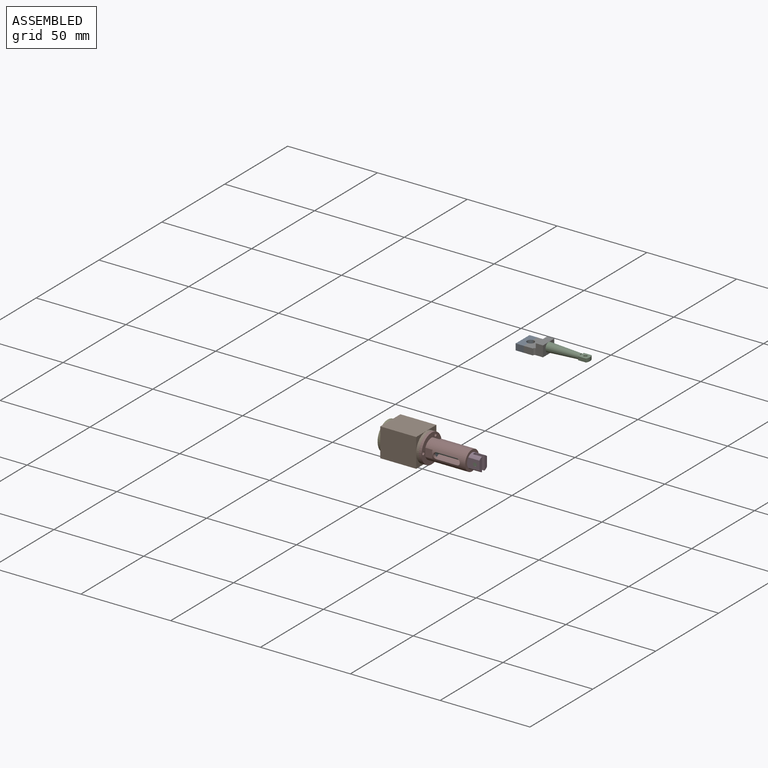
[diagram: assembled view]
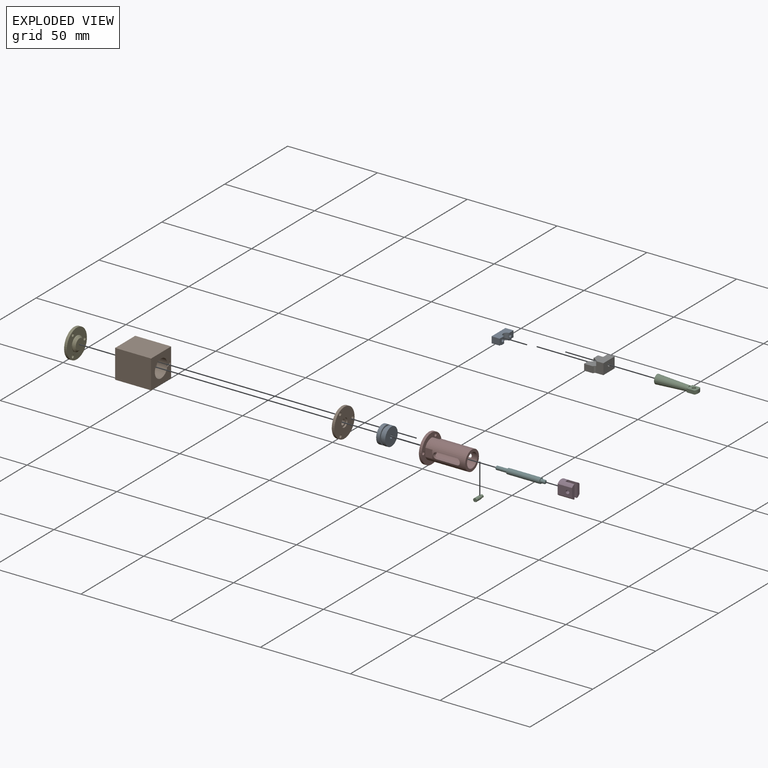
[diagram: exploded view]
GUIDED TOUR — MATED ASSEMBLY (Onshape document 35b961d6c0c4da3e0b8d5fec, AutoMate assembly 35b961d6c0c4da3e0b8d5fec_8a7f03e0285d7476e29d82cc_117d4b08d3fd386e39b63ba8_default)

This assembly has 11 components, labeled P0..P10 below (a component is one placed occurrence of a part; the same part can appear more than once), held together by 13 mates. A mate is a constraint between two components; its type names the relative motion it leaves free:
  CYLINDRICAL — leaves both rotation about and translation along the listed axis free,
  PARALLEL — keeps the two listed directions parallel,
  REVOLUTE — leaves rotation about the listed axis free (a hinge),
  SLIDER — leaves translation along the listed axis free.
Axis/direction vectors are unit vectors and 'through' points are millimeter coordinates, both in the assembly's world frame.

MATES
  1. REVOLUTE "Revolute 4": P1 <-> P7, axis (1.000, 0.000, 0.000) through (-35.29, -15.67, -13.66) mm
  2. CYLINDRICAL "Cylindrical 1": P8 <-> P6, axis (1.000, 0.000, 0.000) through (-20.15, 46.58, 19.34) mm
  3. REVOLUTE "Revolute 2": P3 <-> P5, axis (-1.000, 0.000, 0.000) through (-13.08, -15.67, -13.66) mm
  4. REVOLUTE "Revolute 7": P6 <-> P2, axis (1.000, 0.000, 0.000) through (-10.15, 43.58, 21.09) mm
  5. REVOLUTE "Revolute 6": P4 <-> P9, axis (1.000, 0.000, 0.000) through (-56.79, -15.67, -13.66) mm
  6. PARALLEL "Parallel 2": P3 <-> P7, direction (0.000, -1.000, 0.000) through (-9.20, -18.67, -13.66) mm
  7. REVOLUTE "Revolute 3": P10 <-> P3, axis (0.000, 1.000, 0.000) through (-7.58, -12.67, -13.66) mm
  8. PARALLEL "Parallel 3": P2 <-> P6, direction (0.000, 0.000, -1.000) through (10.23, 43.58, 20.09) mm
  9. REVOLUTE "Revolute 1": P5 <-> P0, axis (-1.000, 0.000, 0.000) through (-31.58, -15.67, -13.66) mm
  10. REVOLUTE "Revolute 5": P9 <-> P1, axis (1.000, 0.000, 0.000) through (-36.79, -15.67, -13.66) mm
  11. PARALLEL "Parallel 1": P7 <-> P9, direction (0.000, -1.000, 0.000) through (-31.79, -20.67, -13.66) mm
  12. REVOLUTE "Revolute 8": P6 <-> P8, axis (0.000, 0.000, -1.000) through (-20.15, 43.58, 17.29) mm
  13. SLIDER "Slider 1": P5 <-> P1, axis (-1.000, 0.000, 0.000) through (-22.33, -15.67, -13.66) mm

ASSEMBLY ORDER
  1. P7 — the base component [order heuristic]
  2. P5 — core [order heuristic]
  3. P0 — core [order heuristic]
  4. P1 [order verified]
  5. P10 [order verified]
  6. P3 [order verified]
  7. P8 [order verified]
  8. P6 [order verified]
  9. P2 [order verified]
  10. P9 [order verified]
  11. P4 [order verified]
(P1, P10 verified with a relaxed clearance tolerance: the source model stores slight part interference there.)
Order-tag legend:
  [order verified] — this step's position reverses a verified removal order: the component was checked to insert without passing through the ones already placed.
  [order heuristic] — the first 3 components form the assembly's core: parts whose collision-free extraction could not be verified, listed in mate-graph order.

Of the 11 components, 8 carry the full construction recipe — the FeatureScript program that regenerates the part's solid from scratch; the rest are supplied as boundary geometry only.
Each toured component is shown spotlighted twice — in the assembled view, then in the exploded view, where a leader line traces a displaced component back to its assembled socket (saturated green if recipe-attached, orange if geometry-only; every other component desaturated gray) — followed by its recipe or geometry summary and the mates that hold it.
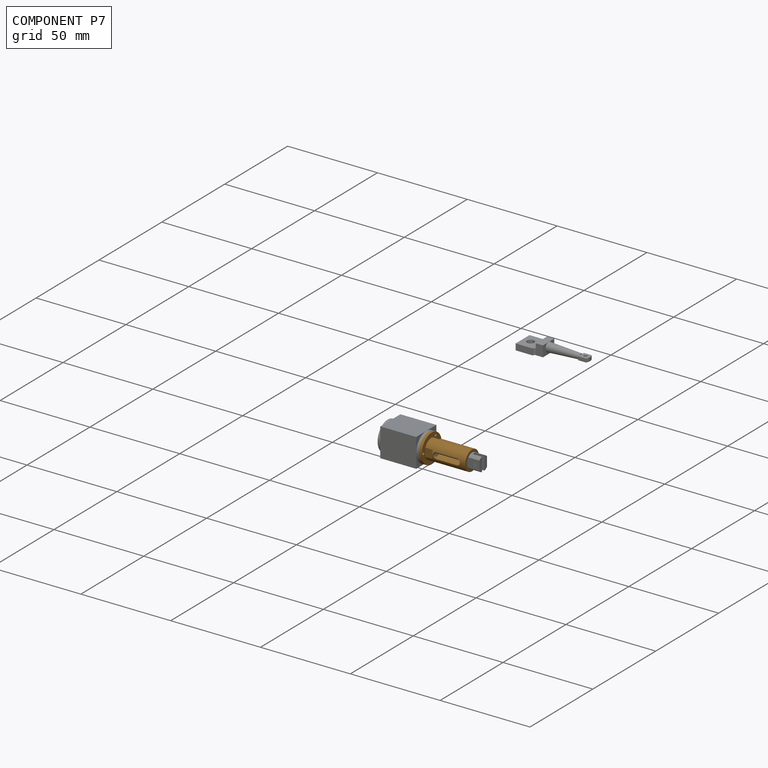
[diagram: component P7 — assembled]
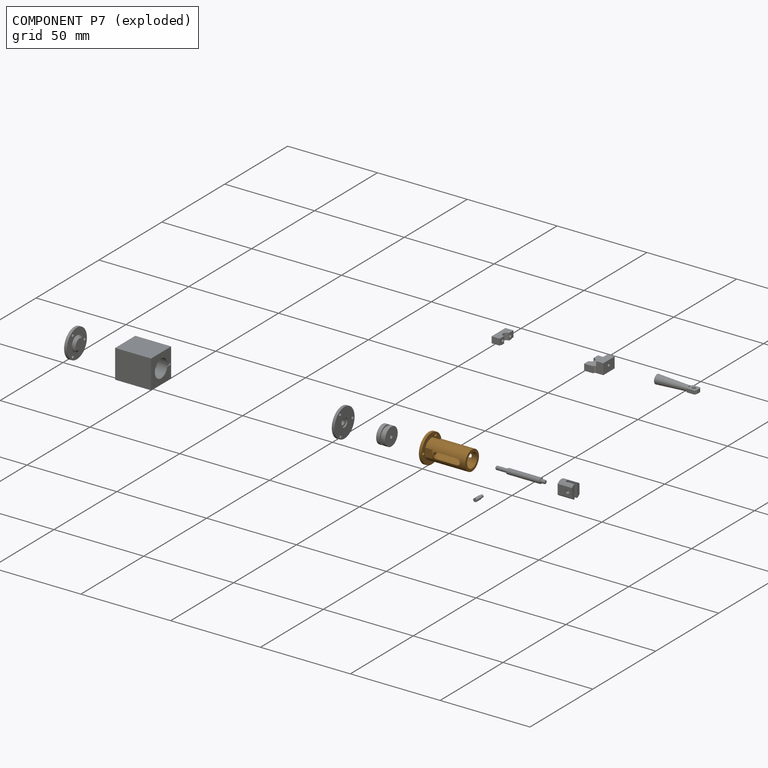
[diagram: component P7 — exploded]
COMPONENT P7 — geometry summary (no construction recipe available for this part):
  bounding box: 24.0 x 16.0 x 16.0 mm
  B-rep topology: 1 solid, 25 faces, 138 edges
  volume: 1162 mm^3 (19% of its bounding box)
  symmetry: mirror-symmetric across its z mid-plane
Held by: REVOLUTE mate "Revolute 4" to P1; PARALLEL mate "Parallel 2" to P3; PARALLEL mate "Parallel 1" to P9.
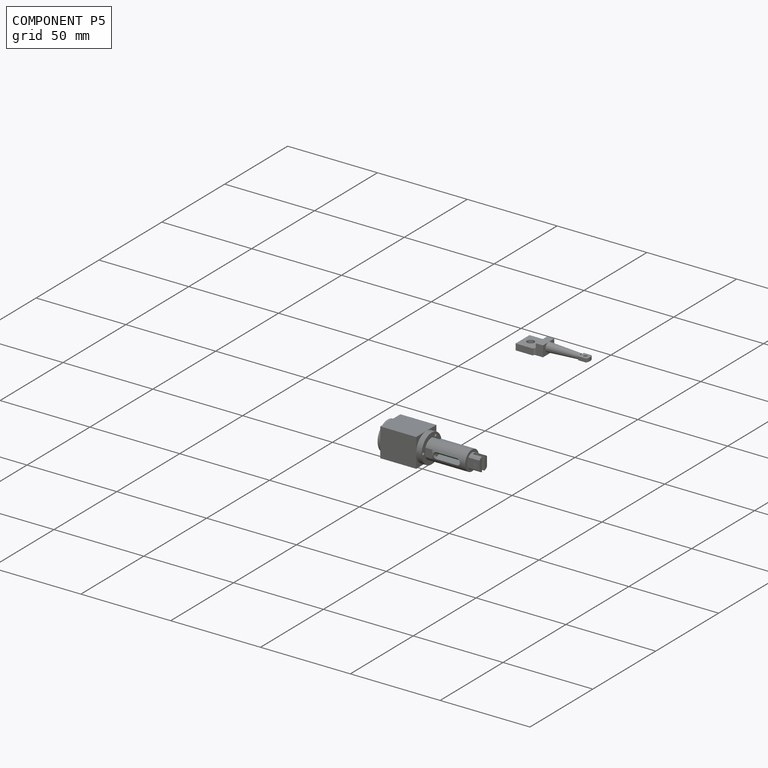
[diagram: component P5 — assembled]
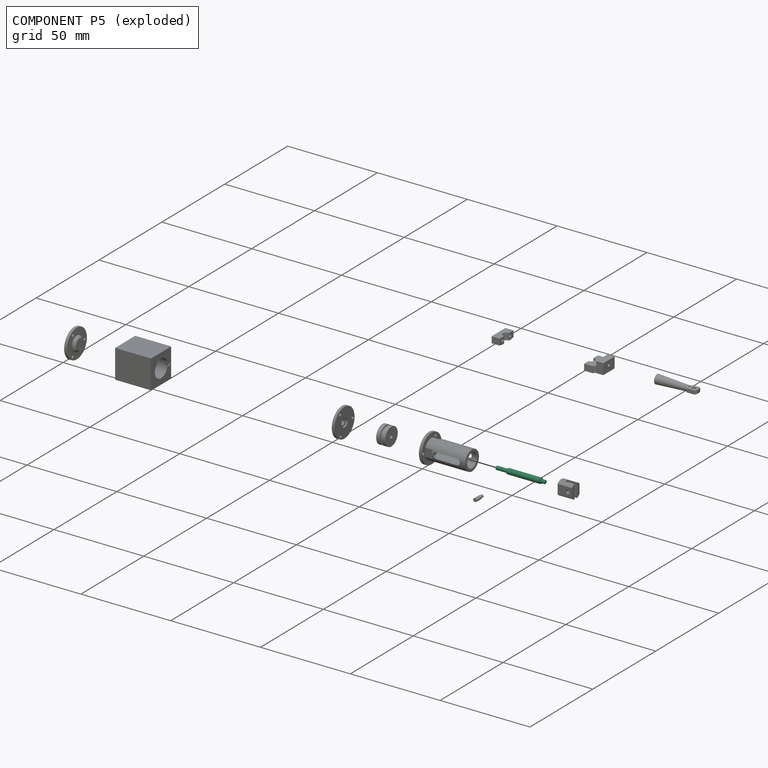
[diagram: component P5 — exploded]
COMPONENT P5 — recipe-attached (CADFS 00828134, mesh-verified: the recipe's output STEP matches this component's geometry to below the mesh-comparison resolution (tessellation chordal tolerance ~0.0417 mm)).
Held by: REVOLUTE mate "Revolute 2" to P3; REVOLUTE mate "Revolute 1" to P0; SLIDER mate "Slider 1" to P1.
Construction recipe (FeatureScript — the CAD program that rebuilds this solid; sketch coordinates are in the units given by the * unit suffixes, e.g. mm):

FeatureScript 1511;
import(path : "onshape/std/geometry.fs", version : "1511.0");
import(path : "onshape/std/common.fs", version : "1511.0");
const mm = millimeter;
const VERTEX = EntityType.VERTEX;
const EDGE = EntityType.EDGE;
const FACE = EntityType.FACE;
const BODY = EntityType.BODY;
function v(x, y){return vector(x, y);}
function OD(order){return orderDisambiguation(order);}
function OSD(set){return originalSetDisambiguation(set);}
function TD(topology){return topologyDisambiguation(topology);}
function TDD(query){return trueDependencyDisambiguation(query);}
function sQuery(a, b, c) {return sketchEntityQuery(a, b, c);}

annotation { "Feature Type Name" : "Feature", "Feature Type Description" : "" }
export const myFeature = defineFeature(function(context is Context, id is Id, definition is map)
    precondition{}
    {
        {
            var Q0;
            Q0=qCreatedBy(makeId("Front.planeOp"),FACE);
            var sketch = newSketch(context, id + "F0", { "sketchPlane" : qUnion([Q0])});
            skLineSegment(sketch, "E0", {"start": v(-14.55, 0) * mm, "end": v(31.09, 0) * mm, "construction": true});
            skLineSegment(sketch, "E1", {"start": v(0, 0) * mm, "end": v(0, 1) * mm});
            skLineSegment(sketch, "E2", {"start": v(0, 1) * mm, "end": v(6.5, 1) * mm});
            skLineSegment(sketch, "E3", {"start": v(6.5, 1) * mm, "end": v(6.5, 1.5) * mm});
            skLineSegment(sketch, "E4", {"start": v(6.5, 1.5) * mm, "end": v(25, 1.5) * mm});
            skLineSegment(sketch, "E5", {"start": v(25, 1.5) * mm, "end": v(25, 1) * mm});
            skLineSegment(sketch, "E6", {"start": v(25, 1) * mm, "end": v(27.5, 1) * mm});
            skLineSegment(sketch, "E7", {"start": v(27.5, 1) * mm, "end": v(27.5, 0) * mm});
            skLineSegment(sketch, "E8", {"start": v(27.5, 0) * mm, "end": v(0, 0) * mm});
            skSolve(sketch);
        }
        {
            var Q0;
            Q0 = qSketchRegion(id + "F0", true);
            var Q1;
            Q1=sQuery(id+"F0.wireOp",EDGE,"E0");
            revolve(context, id + "F1", {"surfaceOperationType" : NewSurfaceOperationType.NEW, "entities" : qUnion([Q0]), "axis" : qUnion([Q1]), "revolveType" : RevolveType.FULL});
        }
        {
            var Q0;
            Q0=makeQuery(id+"F1.opRevolve","SWEPT_EDGE",EDGE,{"disambiguationData":[OSD([sQuery(id+"F0.wireOp",EDGE,"E1"),sQuery(id+"F0.wireOp",EDGE,"E2")])]});
            var Q1;
            Q1=makeQuery(id+"F1.opRevolve","SWEPT_EDGE",EDGE,{"disambiguationData":[OSD([sQuery(id+"F0.wireOp",EDGE,"E6"),sQuery(id+"F0.wireOp",EDGE,"E7")])]});
            chamfer(context, id + "F2", {"entities" : qUnion([Q0, Q1]), "width" : 0.25 * mm, "tangentPropagation" : true});
        }
    });
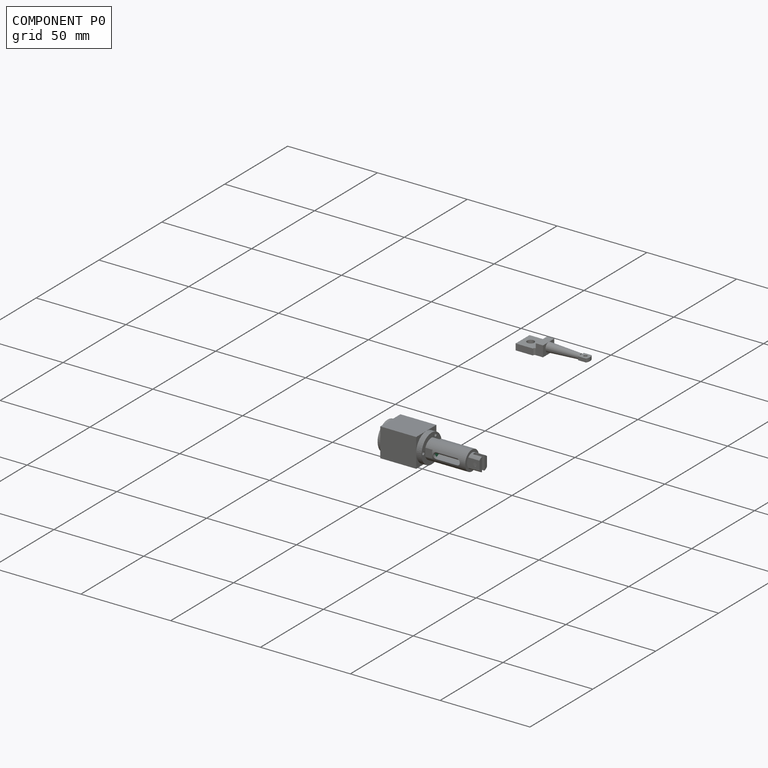
[diagram: component P0 — assembled]
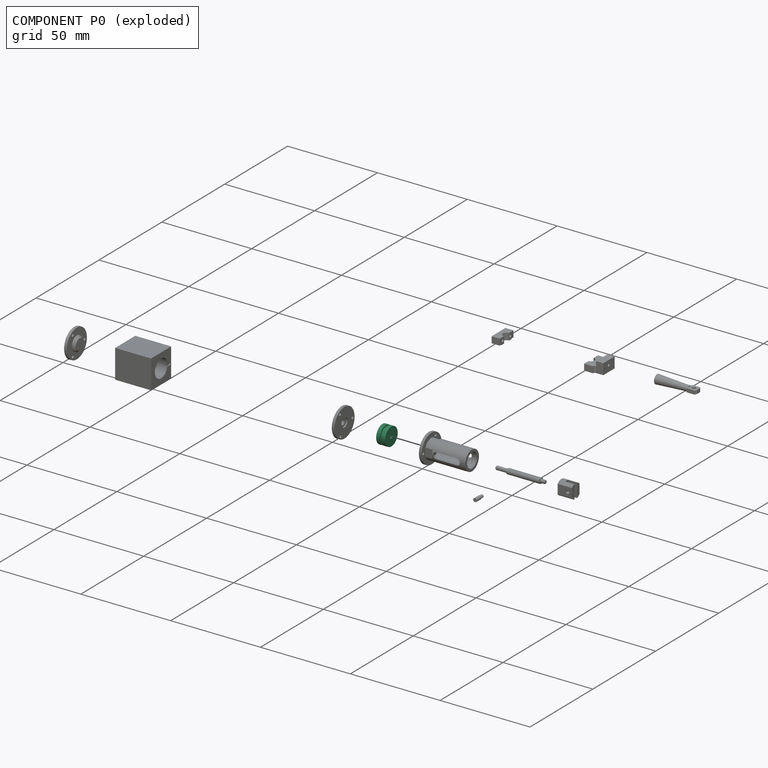
[diagram: component P0 — exploded]
COMPONENT P0 — recipe-attached (CADFS 00828133, mesh-verified: the recipe's output STEP matches this component's geometry to below the mesh-comparison resolution (tessellation chordal tolerance ~0.0225 mm)).
Held by: REVOLUTE mate "Revolute 1" to P5.
Construction recipe (FeatureScript — the CAD program that rebuilds this solid; sketch coordinates are in the units given by the * unit suffixes, e.g. mm):

FeatureScript 1511;
import(path : "onshape/std/geometry.fs", version : "1511.0");
import(path : "onshape/std/common.fs", version : "1511.0");
const mm = millimeter;
const VERTEX = EntityType.VERTEX;
const EDGE = EntityType.EDGE;
const FACE = EntityType.FACE;
const BODY = EntityType.BODY;
function v(x, y){return vector(x, y);}
function OD(order){return orderDisambiguation(order);}
function OSD(set){return originalSetDisambiguation(set);}
function TD(topology){return topologyDisambiguation(topology);}
function TDD(query){return trueDependencyDisambiguation(query);}
function sQuery(a, b, c) {return sketchEntityQuery(a, b, c);}

annotation { "Feature Type Name" : "Feature", "Feature Type Description" : "" }
export const myFeature = defineFeature(function(context is Context, id is Id, definition is map)
    precondition{}
    {
        {
            var Q0;
            Q0=qCreatedBy(makeId("Front.planeOp"),FACE);
            var sketch = newSketch(context, id + "F0", { "sketchPlane" : qUnion([Q0])});
            skLineSegment(sketch, "E0", {"start": v(-3.7, 0) * mm, "end": v(3.74, 0) * mm, "construction": true});
            skLineSegment(sketch, "E1", {"start": v(-2.5, 0) * mm, "end": v(-2.5, 5) * mm});
            skLineSegment(sketch, "E2", {"start": v(-2.5, 5) * mm, "end": v(-0.5, 5) * mm});
            skLineSegment(sketch, "E3", {"start": v(-0.5, 5) * mm, "end": v(-0.5, 4.2) * mm});
            skLineSegment(sketch, "E4", {"start": v(-0.5, 4.2) * mm, "end": v(0.5, 4.2) * mm});
            skLineSegment(sketch, "E5", {"start": v(0.5, 4.2) * mm, "end": v(0.5, 5) * mm});
            skLineSegment(sketch, "E6", {"start": v(0.5, 5) * mm, "end": v(2.5, 5) * mm});
            skLineSegment(sketch, "E7", {"start": v(2.5, 5) * mm, "end": v(2.5, 0) * mm});
            skLineSegment(sketch, "E8", {"start": v(2.5, 0) * mm, "end": v(-2.5, 0) * mm});
            skSolve(sketch);
        }
        {
            var Q0;
            Q0 = qSketchRegion(id + "F0", true);
            var Q1;
            Q1=sQuery(id+"F0.wireOp",EDGE,"E0");
            revolve(context, id + "F1", {"surfaceOperationType" : NewSurfaceOperationType.NEW, "entities" : qUnion([Q0]), "axis" : qUnion([Q1]), "revolveType" : RevolveType.FULL});
        }
        {
            var Q0;
            Q0=makeQuery(id+"F1.opRevolve","SWEPT_FACE",FACE,{"disambiguationData":[OSD([sQuery(id+"F0.wireOp",EDGE,"E1")])]});
            var sketch = newSketch(context, id + "F2", { "sketchPlane" : qUnion([Q0])});
            skPoint(sketch, "E9", {"position": v(0, 0) * mm});
            skSolve(sketch);
        }
        {
            var Q0;
            Q0=sQuery(id+"F2.wireOp",VERTEX,"E9");
            var Q1;
            Q1=makeQuery(id+"F1.opRevolve","SWEPT_BODY",BODY,{"disambiguationData":[OSD([sQuery(id+"F0.wireOp",EDGE,"E1"),sQuery(id+"F0.wireOp",EDGE,"E2"),sQuery(id+"F0.wireOp",EDGE,"E3"),sQuery(id+"F0.wireOp",EDGE,"E4"),sQuery(id+"F0.wireOp",EDGE,"E5"),sQuery(id+"F0.wireOp",EDGE,"E6"),sQuery(id+"F0.wireOp",EDGE,"E7"),sQuery(id+"F0.wireOp",EDGE,"E8")])]});
            hole(context, id + "F3", {"style" : HoleStyle.SIMPLE, "endStyle" : HoleEndStyle.THROUGH, "standardTappedOrClearance" : lookupTablePath({ "standard" : "ISO", "size" : "2", "type" : "Drilled" }), "standardBlindInLast" : lookupTablePath({ "standard" : "ISO", "size" : "2", "type" : "Drilled" }), "holeDiameter" : 2 * mm, "majorDiameter" : 5 * mm, "isTappedThrough" : true, "tappedDepth" : 7.3 * mm, "tapClearance" : 3, "locations" : qUnion([Q0]), "scope" : qUnion([Q1])});
        }
    });
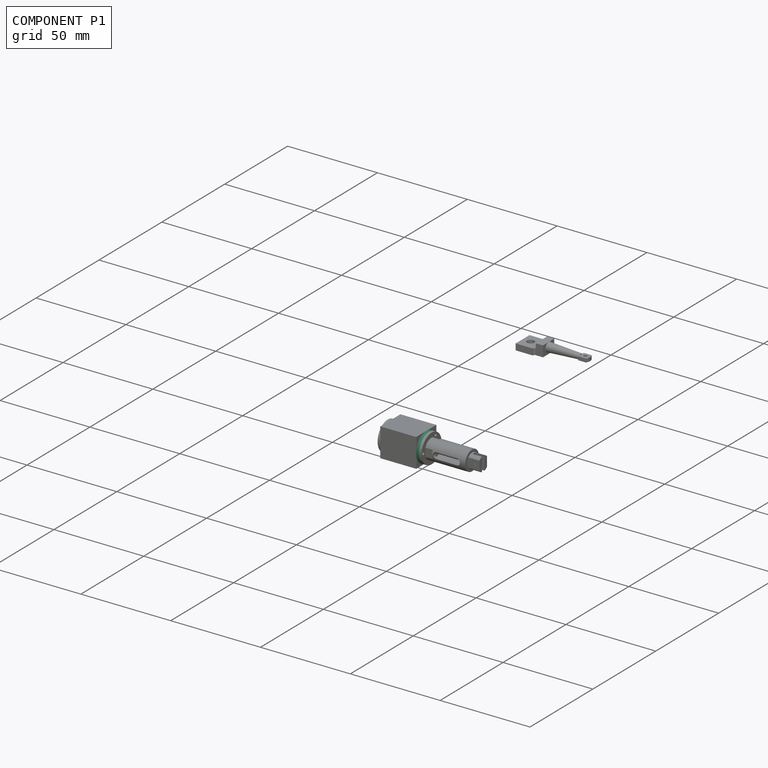
[diagram: component P1 — assembled]
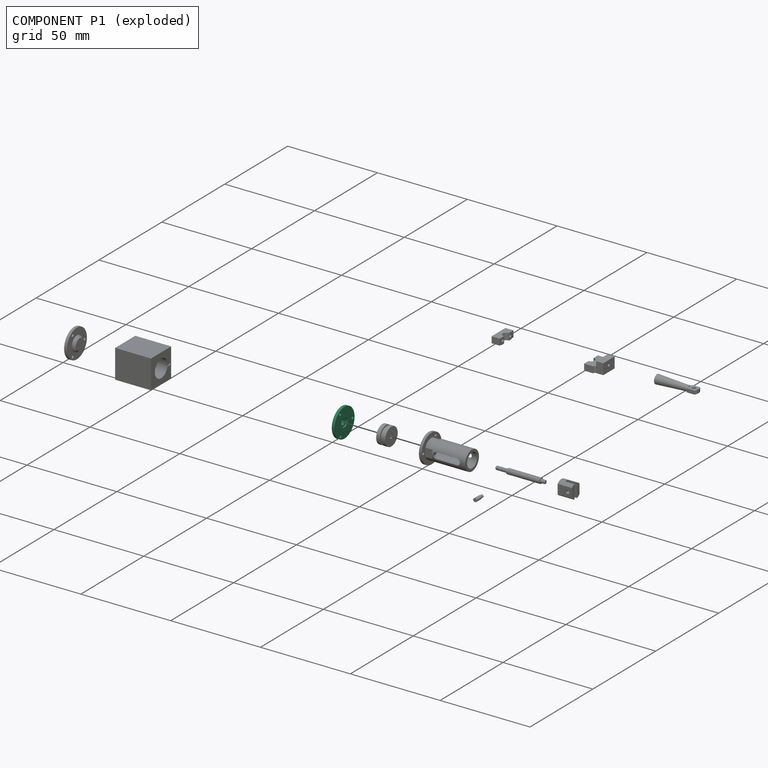
[diagram: component P1 — exploded]
COMPONENT P1 — recipe-attached (CADFS 00828152, mesh-verified: the recipe's output STEP matches this component's geometry to below the mesh-comparison resolution (tessellation chordal tolerance ~0.0341 mm)).
Held by: REVOLUTE mate "Revolute 4" to P7; REVOLUTE mate "Revolute 5" to P9; SLIDER mate "Slider 1" to P5.
Construction recipe (FeatureScript — the CAD program that rebuilds this solid; sketch coordinates are in the units given by the * unit suffixes, e.g. mm):

FeatureScript 1511;
import(path : "onshape/std/geometry.fs", version : "1511.0");
import(path : "onshape/std/common.fs", version : "1511.0");
const mm = millimeter;
const VERTEX = EntityType.VERTEX;
const EDGE = EntityType.EDGE;
const FACE = EntityType.FACE;
const BODY = EntityType.BODY;
function v(x, y){return vector(x, y);}
function OD(order){return orderDisambiguation(order);}
function OSD(set){return originalSetDisambiguation(set);}
function TD(topology){return topologyDisambiguation(topology);}
function TDD(query){return trueDependencyDisambiguation(query);}
function sQuery(a, b, c) {return sketchEntityQuery(a, b, c);}

annotation { "Feature Type Name" : "Feature", "Feature Type Description" : "" }
export const myFeature = defineFeature(function(context is Context, id is Id, definition is map)
    precondition{}
    {
        {
            var Q0;
            Q0=qCreatedBy(makeId("Front.planeOp"),FACE);
            var sketch = newSketch(context, id + "F0", { "sketchPlane" : qUnion([Q0])});
            skLineSegment(sketch, "E0", {"start": v(0, 0) * mm, "end": v(2.3, 0) * mm});
            skLineSegment(sketch, "E1", {"start": v(2.3, 0) * mm, "end": v(2.3, 5) * mm});
            skLineSegment(sketch, "E2", {"start": v(2.3, 5) * mm, "end": v(1.5, 5) * mm});
            skLineSegment(sketch, "E3", {"start": v(1.5, 5) * mm, "end": v(1.5, 8) * mm});
            skLineSegment(sketch, "E4", {"start": v(1.5, 8) * mm, "end": v(0, 8) * mm});
            skLineSegment(sketch, "E5", {"start": v(0, 8) * mm, "end": v(0, 0) * mm});
            skSolve(sketch);
        }
        {
            var Q0;
            Q0 = qSketchRegion(id + "F0", true);
            var Q1;
            Q1=sQuery(id+"F0.wireOp",EDGE,"E0");
            revolve(context, id + "F1", {"surfaceOperationType" : NewSurfaceOperationType.NEW, "entities" : qUnion([Q0]), "axis" : qUnion([Q1]), "revolveType" : RevolveType.FULL});
        }
        {
            var Q0;
            Q0=qCreatedBy(makeId("Front.planeOp"),FACE);
            var sketch = newSketch(context, id + "F2", { "sketchPlane" : qUnion([Q0])});
            skLineSegment(sketch, "E6", {"start": v(0, 0) * mm, "end": v(0, 2.45) * mm});
            skLineSegment(sketch, "E7", {"start": v(0, 2.45) * mm, "end": v(0.9, 2.45) * mm});
            skLineSegment(sketch, "E8", {"start": v(0.9, 2.45) * mm, "end": v(0.9, 1.5) * mm});
            skLineSegment(sketch, "E9", {"start": v(0.9, 1.5) * mm, "end": v(2.3, 1.5) * mm});
            skLineSegment(sketch, "E10", {"start": v(2.3, 1.5) * mm, "end": v(2.3, 0) * mm});
            skLineSegment(sketch, "E11", {"start": v(2.3, 0) * mm, "end": v(0, 0) * mm});
            skSolve(sketch);
        }
        {
            var Q0;
            Q0 = qSketchRegion(id + "F2", true);
            var Q1;
            Q1=sQuery(id+"F2.wireOp",EDGE,"E11");
            revolve(context, id + "F3", {"operationType" : NewBodyOperationType.REMOVE, "surfaceOperationType" : NewSurfaceOperationType.NEW, "entities" : qUnion([Q0]), "axis" : qUnion([Q1]), "revolveType" : RevolveType.FULL, "oppositeDirection" : true});
        }
        {
            var Q0;
            Q0=makeQuery(id+"F1.opRevolve","SWEPT_FACE",FACE,{"disambiguationData":[OSD([sQuery(id+"F0.wireOp",EDGE,"E3")])]});
            var sketch = newSketch(context, id + "F4", { "sketchPlane" : qUnion([Q0])});
            skCircle(sketch, "E12", {"center": v(0, 0) * mm, "radius": 6.5 * mm, "construction": true});
            skLineSegment(sketch, "E13", {"start": v(0, 0) * mm, "end": v(6.5, 0) * mm});
            skLineSegment(sketch, "E14", {"start": v(0, 0) * mm, "end": v(-3.25, -5.63) * mm});
            skLineSegment(sketch, "E15", {"start": v(0, 0) * mm, "end": v(-3.25, 5.63) * mm});
            skCircle(sketch, "E16", {"center": v(-3.25, 5.63) * mm, "radius": 0.85 * mm});
            skCircle(sketch, "E17", {"center": v(6.5, 0) * mm, "radius": 0.85 * mm});
            skCircle(sketch, "E18", {"center": v(-3.25, -5.63) * mm, "radius": 0.85 * mm});
            skSolve(sketch);
        }
        {
            var Q0;
            Q0 = qSketchRegion(id + "F4", true);
            extrude(context, id + "F5", {"entities" : qUnion([Q0]), "operationType" : NewBodyOperationType.REMOVE, "endBound" : BoundingType.THROUGH_ALL, "oppositeDirection" : true, "depth" : 25 * mm, "offsetDistance" : 25 * mm});
        }
        {
            var Q0;
            Q0=makeQuery(id+"F1.opRevolve","SWEPT_FACE",FACE,{"disambiguationData":[OSD([sQuery(id+"F0.wireOp",EDGE,"E1")])]});
            var sketch = newSketch(context, id + "F6", { "sketchPlane" : qUnion([Q0])});
            skCircle(sketch, "E19", {"center": v(-5, 0) * mm, "radius": 1.25 * mm});
            skSolve(sketch);
        }
        {
            var Q0;
            Q0 = qSketchRegion(id + "F6", true);
            var Q1;
            Q1=makeQuery(id+"F1.opRevolve","SWEPT_FACE",FACE,{"disambiguationData":[OSD([sQuery(id+"F0.wireOp",EDGE,"E3")])]});
            extrude(context, id + "F7", {"entities" : qUnion([Q0]), "operationType" : NewBodyOperationType.REMOVE, "endBound" : BoundingType.UP_TO_SURFACE, "oppositeDirection" : true, "depth" : 25 * mm, "endBoundEntityFace" : qUnion([Q1]), "offsetDistance" : 25 * mm});
        }
    });
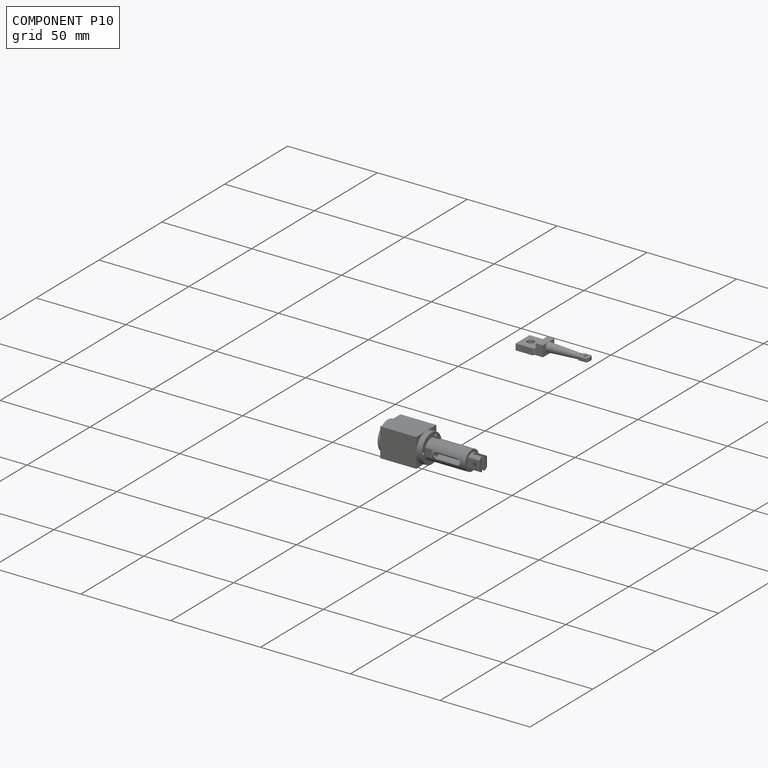
[diagram: component P10 — assembled]
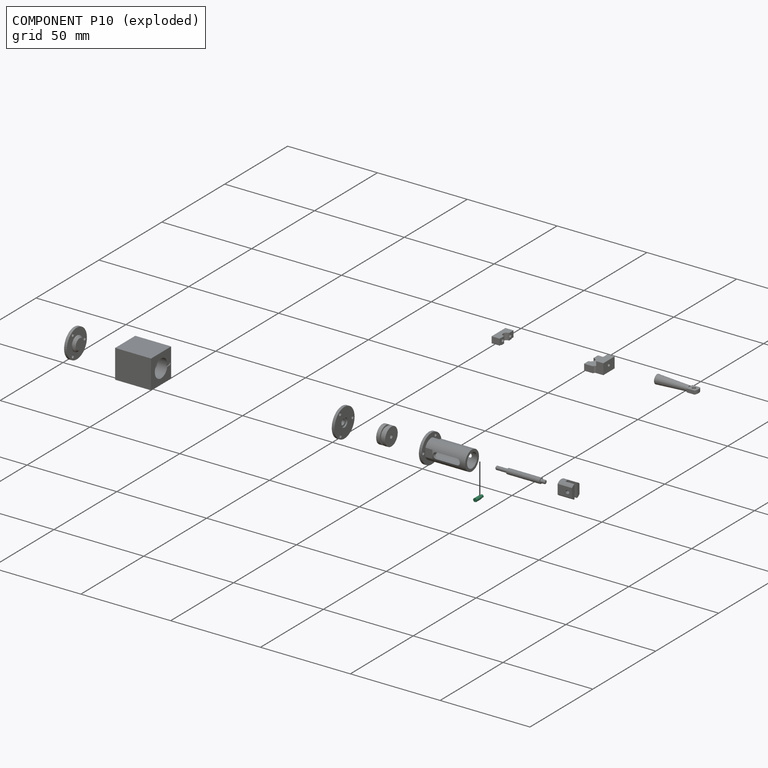
[diagram: component P10 — exploded]
COMPONENT P10 — recipe-attached (CADFS 00828153, mesh-verified: the recipe's output STEP matches this component's geometry to below the mesh-comparison resolution (tessellation chordal tolerance ~0.00995 mm)).
Held by: REVOLUTE mate "Revolute 3" to P3.
Construction recipe (FeatureScript — the CAD program that rebuilds this solid; sketch coordinates are in the units given by the * unit suffixes, e.g. mm):

FeatureScript 1511;
import(path : "onshape/std/geometry.fs", version : "1511.0");
import(path : "onshape/std/common.fs", version : "1511.0");
const mm = millimeter;
const VERTEX = EntityType.VERTEX;
const EDGE = EntityType.EDGE;
const FACE = EntityType.FACE;
const BODY = EntityType.BODY;
function v(x, y){return vector(x, y);}
function OD(order){return orderDisambiguation(order);}
function OSD(set){return originalSetDisambiguation(set);}
function TD(topology){return topologyDisambiguation(topology);}
function TDD(query){return trueDependencyDisambiguation(query);}
function sQuery(a, b, c) {return sketchEntityQuery(a, b, c);}

annotation { "Feature Type Name" : "Feature", "Feature Type Description" : "" }
export const myFeature = defineFeature(function(context is Context, id is Id, definition is map)
    precondition{}
    {
        {
            var Q0;
            Q0=qCreatedBy(makeId("Front.planeOp"),FACE);
            var sketch = newSketch(context, id + "F0", { "sketchPlane" : qUnion([Q0])});
            skLineSegment(sketch, "E0", {"start": v(0, 0) * mm, "end": v(6, 0) * mm});
            skLineSegment(sketch, "E1", {"start": v(6, 0) * mm, "end": v(6, 1) * mm});
            skLineSegment(sketch, "E2", {"start": v(6, 1) * mm, "end": v(2, 1) * mm});
            skLineSegment(sketch, "E3", {"start": v(2, 1) * mm, "end": v(2, 0.8) * mm});
            skLineSegment(sketch, "E4", {"start": v(2, 0.8) * mm, "end": v(0, 0.8) * mm});
            skLineSegment(sketch, "E5", {"start": v(0, 0.8) * mm, "end": v(0, 0) * mm});
            skSolve(sketch);
        }
        {
            var Q0;
            Q0 = qSketchRegion(id + "F0", true);
            var Q1;
            Q1=sQuery(id+"F0.wireOp",EDGE,"E0");
            revolve(context, id + "F1", {"surfaceOperationType" : NewSurfaceOperationType.NEW, "entities" : qUnion([Q0]), "axis" : qUnion([Q1]), "revolveType" : RevolveType.FULL});
        }
        {
            var Q0;
            Q0=makeQuery(id+"F1.opRevolve","SWEPT_EDGE",EDGE,{"disambiguationData":[OSD([sQuery(id+"F0.wireOp",EDGE,"E4"),sQuery(id+"F0.wireOp",EDGE,"E5")])]});
            chamfer(context, id + "F2", {"entities" : qUnion([Q0]), "width" : 0.25 * mm, "tangentPropagation" : true});
        }
        {
            var Q0;
            Q0=qCreatedBy(makeId("Front.planeOp"),FACE);
            var sketch = newSketch(context, id + "F3", { "sketchPlane" : qUnion([Q0])});
            skLineSegment(sketch, "E6.bottom", {"start": v(5.5, 0.2) * mm, "end": v(7, 0.2) * mm});
            skLineSegment(sketch, "E6.top", {"start": v(5.5, -0.2) * mm, "end": v(7, -0.2) * mm});
            skLineSegment(sketch, "E6.left", {"start": v(5.5, 0.2) * mm, "end": v(5.5, -0.2) * mm});
            skLineSegment(sketch, "E6.right", {"start": v(7, 0.2) * mm, "end": v(7, -0.2) * mm});
            skPoint(sketch, "E6.middle", {"position": v(6.25, 0) * mm});
            skSolve(sketch);
        }
        {
            var Q0;
            Q0 = qSketchRegion(id + "F3", true);
            extrude(context, id + "F4", {"entities" : qUnion([Q0]), "operationType" : NewBodyOperationType.REMOVE, "endBound" : BoundingType.SYMMETRIC, "oppositeDirection" : true, "depth" : 25 * mm, "offsetDistance" : 25 * mm});
        }
    });
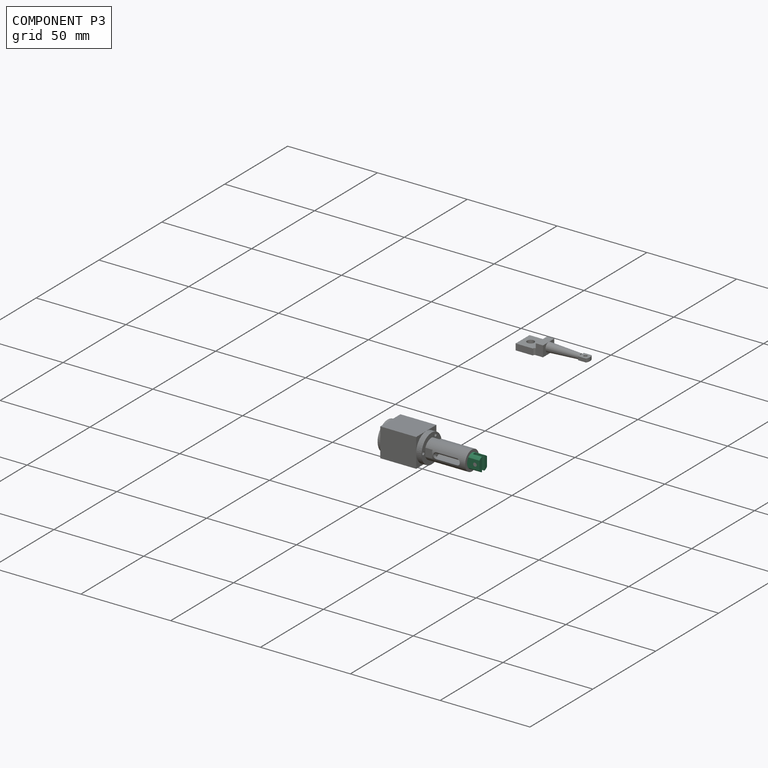
[diagram: component P3 — assembled]
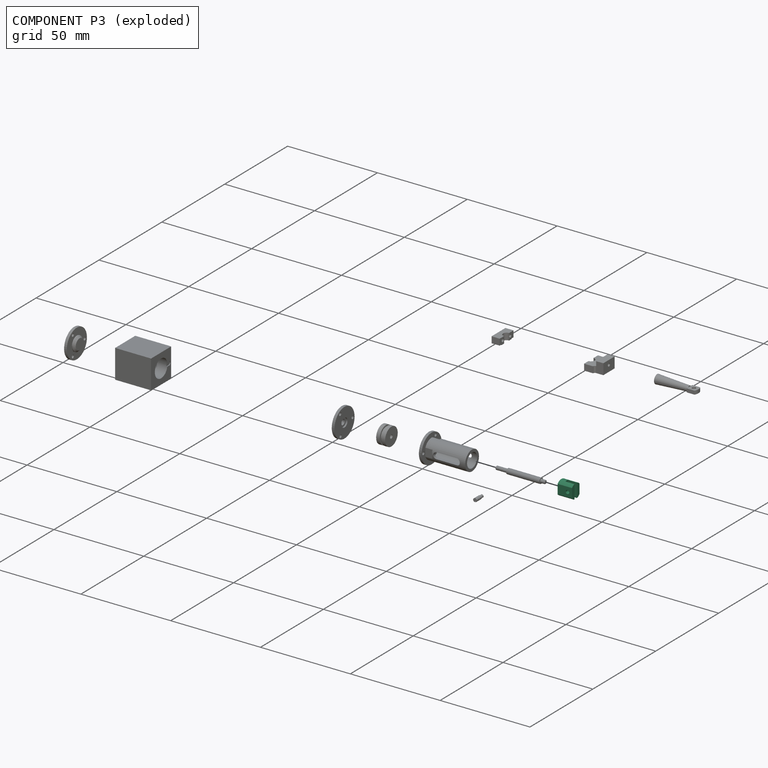
[diagram: component P3 — exploded]
COMPONENT P3 — recipe-attached (CADFS 00828149, mesh-verified: the recipe's output STEP matches this component's geometry to below the mesh-comparison resolution (tessellation chordal tolerance ~0.0192 mm)).
Held by: REVOLUTE mate "Revolute 2" to P5; PARALLEL mate "Parallel 2" to P7; REVOLUTE mate "Revolute 3" to P10.
Construction recipe (FeatureScript — the CAD program that rebuilds this solid; sketch coordinates are in the units given by the * unit suffixes, e.g. mm):

FeatureScript 1511;
import(path : "onshape/std/geometry.fs", version : "1511.0");
import(path : "onshape/std/common.fs", version : "1511.0");
const mm = millimeter;
const VERTEX = EntityType.VERTEX;
const EDGE = EntityType.EDGE;
const FACE = EntityType.FACE;
const BODY = EntityType.BODY;
function v(x, y){return vector(x, y);}
function OD(order){return orderDisambiguation(order);}
function OSD(set){return originalSetDisambiguation(set);}
function TD(topology){return topologyDisambiguation(topology);}
function TDD(query){return trueDependencyDisambiguation(query);}
function sQuery(a, b, c) {return sketchEntityQuery(a, b, c);}

annotation { "Feature Type Name" : "Feature", "Feature Type Description" : "" }
export const myFeature = defineFeature(function(context is Context, id is Id, definition is map)
    precondition{}
    {
        {
            var Q0;
            Q0=qCreatedBy(makeId("Top.planeOp"),FACE);
            var sketch = newSketch(context, id + "F0", { "sketchPlane" : qUnion([Q0])});
            skArc(sketch, "E0", {"start": v(-2.65, 3) * mm, "mid": v(-4, 0) * mm, "end": v(-2.65, -3) * mm});
            skLineSegment(sketch, "E1.bottom", {"start": v(-2.65, 3) * mm, "end": v(2.65, 3) * mm});
            skLineSegment(sketch, "E1.top", {"start": v(-2.65, -3) * mm, "end": v(2.65, -3) * mm});
            skArc(sketch, "E2.trimOffspring", {"start": v(2.65, -3) * mm, "mid": v(4, 0) * mm, "end": v(2.65, 3) * mm});
            skSolve(sketch);
        }
        {
            var Q0;
            Q0 = qSketchRegion(id + "F0", true);
            extrude(context, id + "F1", {"entities" : qUnion([Q0]), "depth" : 8 * mm, "offsetDistance" : 25 * mm});
        }
        {
            var Q0;
            Q0=makeQuery(id+"F1.opExtrude","CAP_FACE",FACE,{"disambiguationData":[OSD([sQuery(id+"F0.wireOp",EDGE,"E0"),sQuery(id+"F0.wireOp",EDGE,"E1.bottom"),sQuery(id+"F0.wireOp",EDGE,"E1.top"),sQuery(id+"F0.wireOp",EDGE,"E2.trimOffspring")])],"isStart":false});
            var sketch = newSketch(context, id + "F2", { "sketchPlane" : qUnion([Q0])});
            skLineSegment(sketch, "E3.bottom", {"start": v(4.58, 1) * mm, "end": v(-4.58, 1) * mm});
            skLineSegment(sketch, "E3.top", {"start": v(4.58, -1) * mm, "end": v(-4.58, -1) * mm});
            skLineSegment(sketch, "E3.left", {"start": v(4.58, 1) * mm, "end": v(4.58, -1) * mm});
            skLineSegment(sketch, "E3.right", {"start": v(-4.58, 1) * mm, "end": v(-4.58, -1) * mm});
            skPoint(sketch, "E3.middle", {"position": v(0, 0) * mm});
            skSolve(sketch);
        }
        {
            var Q0;
            Q0 = qSketchRegion(id + "F2", true);
            extrude(context, id + "F3", {"entities" : qUnion([Q0]), "operationType" : NewBodyOperationType.REMOVE, "oppositeDirection" : true, "depth" : 5 * mm, "offsetDistance" : 25 * mm});
        }
        {
            var Q0;
            Q0=makeQuery(id+"F1.opExtrude","SWEPT_FACE",FACE,{"disambiguationData":[OSD([sQuery(id+"F0.wireOp",EDGE,"E1.top")])]});
            var sketch = newSketch(context, id + "F4", { "sketchPlane" : qUnion([Q0])});
            skCircle(sketch, "E4", {"center": v(0, 5.5) * mm, "radius": 0.6 * mm});
            skSolve(sketch);
        }
        {
            var Q0;
            Q0 = qSketchRegion(id + "F4", true);
            extrude(context, id + "F5", {"entities" : qUnion([Q0]), "operationType" : NewBodyOperationType.REMOVE, "endBound" : BoundingType.THROUGH_ALL, "oppositeDirection" : true, "depth" : 25 * mm, "offsetDistance" : 25 * mm});
        }
        {
            var Q0;
            Q0=makeQuery(id+"F1.opExtrude","SWEPT_FACE",FACE,{"disambiguationData":[OSD([sQuery(id+"F0.wireOp",EDGE,"E1.bottom")])]});
            var sketch = newSketch(context, id + "F6", { "sketchPlane" : qUnion([Q0])});
            skCircle(sketch, "E5", {"center": v(0, 5.5) * mm, "radius": 1 * mm});
            skSolve(sketch);
        }
        {
            var Q0;
            Q0 = qSketchRegion(id + "F6", true);
            var Q1;
            Q1=makeQuery(id+"F3.boolean.opBoolean","COPY",FACE,{"derivedFrom":makeQuery(id+"F3.opExtrude","SWEPT_FACE",FACE,{"disambiguationData":[OSD([sQuery(id+"F2.wireOp",EDGE,"E3.bottom")])]})});
            extrude(context, id + "F7", {"entities" : qUnion([Q0]), "operationType" : NewBodyOperationType.REMOVE, "endBound" : BoundingType.UP_TO_SURFACE, "oppositeDirection" : true, "depth" : 25 * mm, "endBoundEntityFace" : qUnion([Q1]), "offsetDistance" : 25 * mm});
        }
        {
            var Q0;
            Q0=makeQuery(id+"F3.boolean.opBoolean","COPY",FACE,{"derivedFrom":makeQuery(id+"F3.opExtrude","CAP_FACE",FACE,{"disambiguationData":[OSD([sQuery(id+"F2.wireOp",EDGE,"E3.bottom"),sQuery(id+"F2.wireOp",EDGE,"E3.top"),sQuery(id+"F2.wireOp",EDGE,"E3.left"),sQuery(id+"F2.wireOp",EDGE,"E3.right")])],"isStart":false})});
            var sketch = newSketch(context, id + "F8", { "sketchPlane" : qUnion([Q0])});
            skCircle(sketch, "E6", {"center": v(0, 0) * mm, "radius": 0.85 * mm});
            skSolve(sketch);
        }
        {
            var Q0;
            Q0 = qSketchRegion(id + "F8", true);
            extrude(context, id + "F9", {"entities" : qUnion([Q0]), "operationType" : NewBodyOperationType.REMOVE, "endBound" : BoundingType.THROUGH_ALL, "oppositeDirection" : true, "depth" : 25 * mm, "offsetDistance" : 25 * mm});
        }
    });
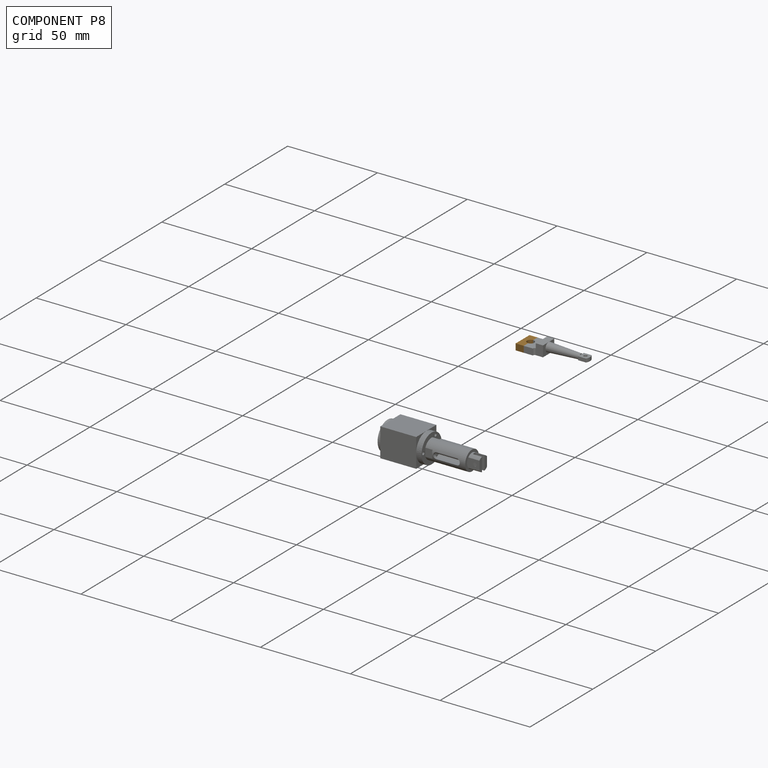
[diagram: component P8 — assembled]
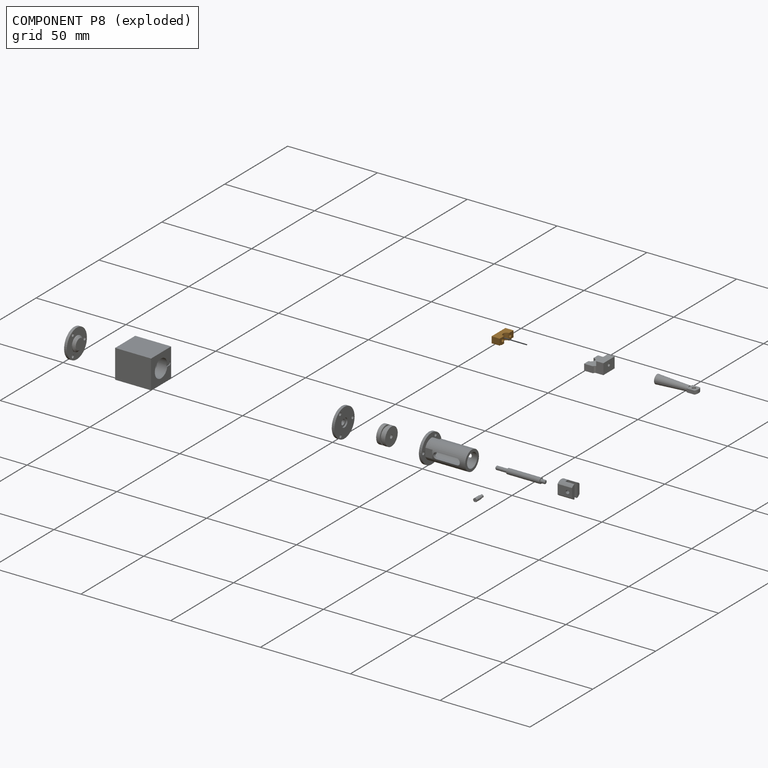
[diagram: component P8 — exploded]
COMPONENT P8 — geometry summary (no construction recipe available for this part):
  bounding box: 11.0 x 4.5 x 3.8 mm
  B-rep topology: 1 solid, 12 faces, 60 edges
  volume: 136 mm^3 (73% of its bounding box)
  symmetry: mirror-symmetric across its y mid-plane
Held by: CYLINDRICAL mate "Cylindrical 1" to P6; REVOLUTE mate "Revolute 8" to P6.
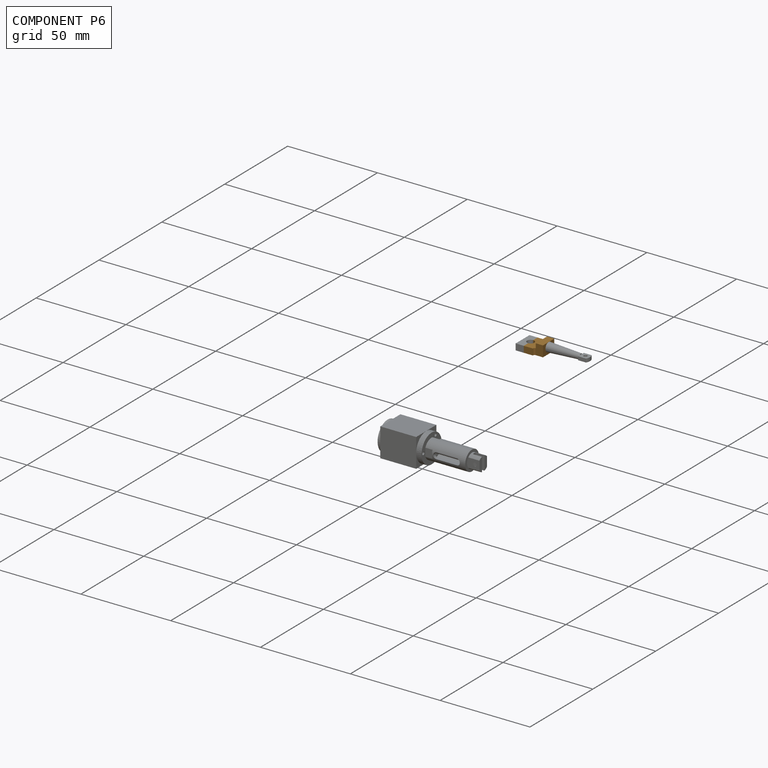
[diagram: component P6 — assembled]
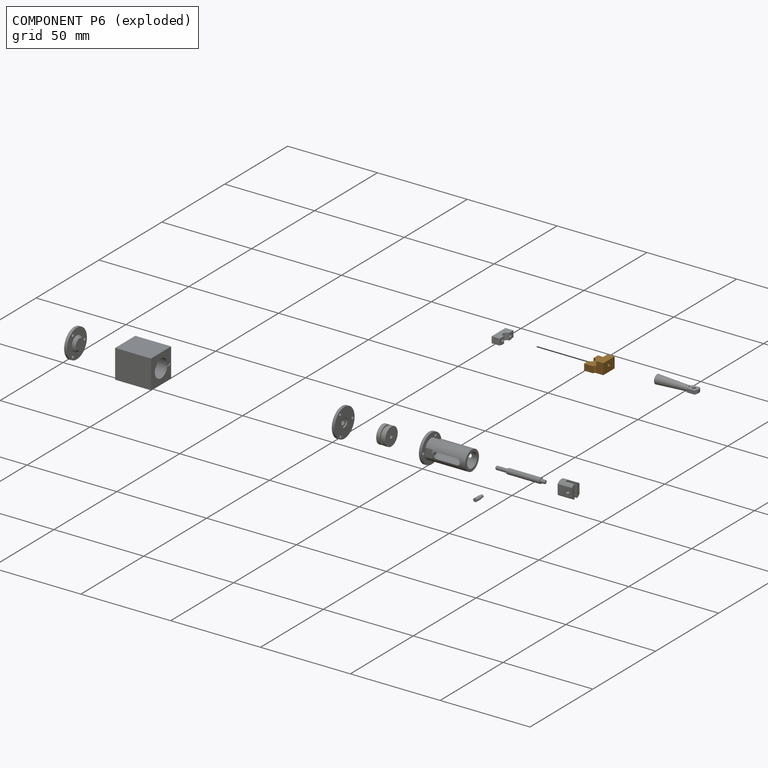
[diagram: component P6 — exploded]
COMPONENT P6 — geometry summary (no construction recipe available for this part):
  bounding box: 11.0 x 10.0 x 6.3 mm
  B-rep topology: 1 solid, 24 faces, 117 edges
  volume: 406 mm^3 (59% of its bounding box)
  symmetry: mirror-symmetric across its y mid-plane
Held by: CYLINDRICAL mate "Cylindrical 1" to P8; REVOLUTE mate "Revolute 7" to P2; PARALLEL mate "Parallel 3" to P2; REVOLUTE mate "Revolute 8" to P8.
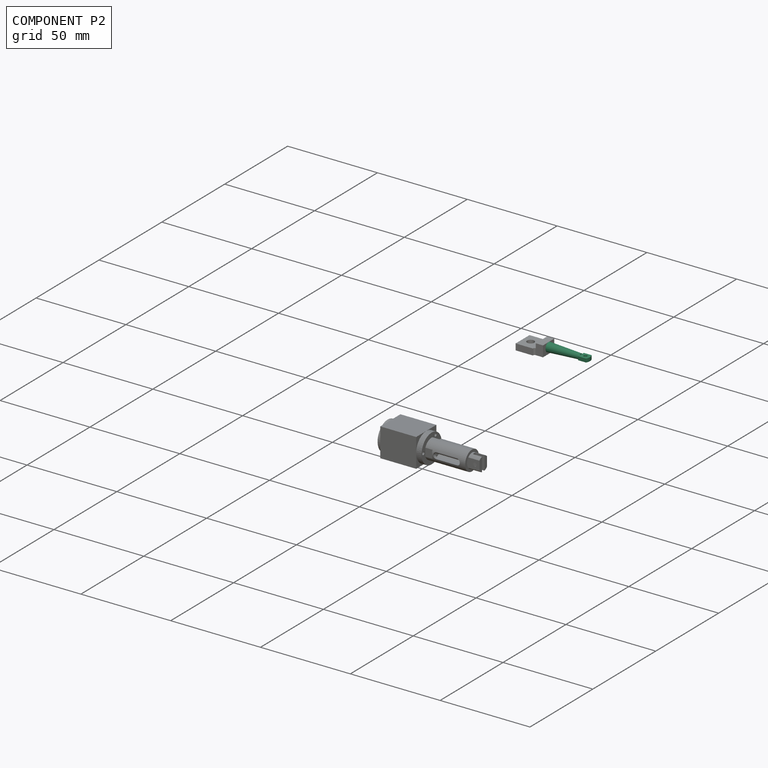
[diagram: component P2 — assembled]
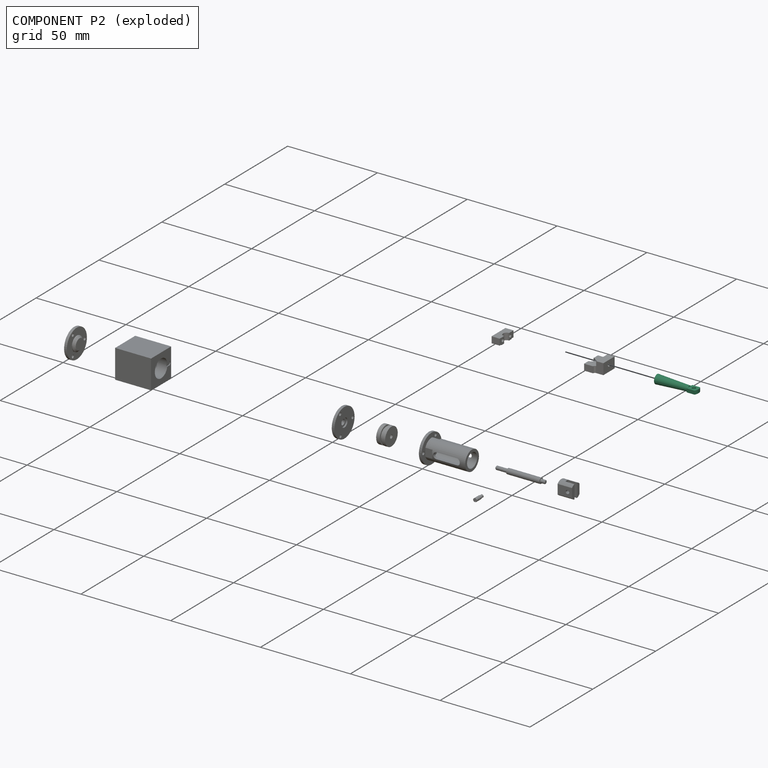
[diagram: component P2 — exploded]
COMPONENT P2 — recipe-attached (CADFS 00828137, mesh-verified: the recipe's output STEP matches this component's geometry to below the mesh-comparison resolution (tessellation chordal tolerance ~0.0361 mm)).
Held by: REVOLUTE mate "Revolute 7" to P6; PARALLEL mate "Parallel 3" to P6.
Construction recipe (FeatureScript — the CAD program that rebuilds this solid; sketch coordinates are in the units given by the * unit suffixes, e.g. mm):

FeatureScript 1511;
import(path : "onshape/std/geometry.fs", version : "1511.0");
import(path : "onshape/std/common.fs", version : "1511.0");
const mm = millimeter;
const VERTEX = EntityType.VERTEX;
const EDGE = EntityType.EDGE;
const FACE = EntityType.FACE;
const BODY = EntityType.BODY;
function v(x, y){return vector(x, y);}
function OD(order){return orderDisambiguation(order);}
function OSD(set){return originalSetDisambiguation(set);}
function TD(topology){return topologyDisambiguation(topology);}
function TDD(query){return trueDependencyDisambiguation(query);}
function sQuery(a, b, c) {return sketchEntityQuery(a, b, c);}

annotation { "Feature Type Name" : "Feature", "Feature Type Description" : "" }
export const myFeature = defineFeature(function(context is Context, id is Id, definition is map)
    precondition{}
    {
        {
            var Q0;
            Q0=qCreatedBy(makeId("Front.planeOp"),FACE);
            var sketch = newSketch(context, id + "F0", { "sketchPlane" : qUnion([Q0])});
            skLineSegment(sketch, "E0", {"start": v(-18, 0) * mm, "end": v(-18, 2.5) * mm});
            skLineSegment(sketch, "E1", {"start": v(-18, 2.5) * mm, "end": v(0, 1.5) * mm});
            skLineSegment(sketch, "E2", {"start": v(0, 1.5) * mm, "end": v(0, 0) * mm});
            skLineSegment(sketch, "E3", {"start": v(0, 0) * mm, "end": v(-18, 0) * mm});
            skLineSegment(sketch, "E4", {"start": v(0, 0) * mm, "end": v(5.5, 0) * mm, "construction": true});
            skSolve(sketch);
        }
        {
            var Q0;
            Q0 = qSketchRegion(id + "F0", true);
            var Q1;
            Q1=sQuery(id+"F0.wireOp",EDGE,"E4");
            revolve(context, id + "F1", {"surfaceOperationType" : NewSurfaceOperationType.NEW, "entities" : qUnion([Q0]), "axis" : qUnion([Q1]), "revolveType" : RevolveType.FULL});
        }
        {
            var Q0;
            Q0=qCreatedBy(makeId("Front.planeOp"),FACE);
            var sketch = newSketch(context, id + "F2", { "sketchPlane" : qUnion([Q0])});
            skLineSegment(sketch, "E5.bottom", {"start": v(0, 2.25) * mm, "end": v(4.4, 2.25) * mm});
            skLineSegment(sketch, "E5.top", {"start": v(0, -2.25) * mm, "end": v(4.4, -2.25) * mm});
            skLineSegment(sketch, "E5.left", {"start": v(0, 2.25) * mm, "end": v(0, -2.25) * mm});
            skCircle(sketch, "E6", {"center": v(2.5, 0) * mm, "radius": 1 * mm});
            skArc(sketch, "E7", {"start": v(4.4, -2.25) * mm, "mid": v(5, 0) * mm, "end": v(4.4, 2.25) * mm});
            skSolve(sketch);
        }
        {
            var Q0;
            Q0 = qSketchRegion(id + "F2", true);
            extrude(context, id + "F3", {"entities" : qUnion([Q0]), "operationType" : NewBodyOperationType.ADD, "endBound" : BoundingType.SYMMETRIC, "depth" : 2 * mm, "offsetDistance" : 25 * mm});
        }
        {
            var Q0;
            Q0=makeQuery(id+"F1.opRevolve","SWEPT_FACE",FACE,{"disambiguationData":[OSD([sQuery(id+"F0.wireOp",EDGE,"E0")])]});
            var sketch = newSketch(context, id + "F4", { "sketchPlane" : qUnion([Q0])});
            skPoint(sketch, "E8", {"position": v(0, 0) * mm});
            skSolve(sketch);
        }
        {
            var Q0;
            Q0=sQuery(id+"F4.wireOp",VERTEX,"E8");
            var Q1;
            Q1=makeQuery(id+"F1.opRevolve","SWEPT_BODY",BODY,{"disambiguationData":[OSD([sQuery(id+"F0.wireOp",EDGE,"E0"),sQuery(id+"F0.wireOp",EDGE,"E1"),sQuery(id+"F0.wireOp",EDGE,"E2"),sQuery(id+"F0.wireOp",EDGE,"E3")])]});
            hole(context, id + "F5", {"style" : HoleStyle.C_SINK, "endStyle" : HoleEndStyle.BLIND, "standardTappedOrClearance" : lookupTablePath({ "standard" : "ISO", "size" : "1.6", "type" : "Drilled" }), "standardBlindInLast" : lookupTablePath({ "standard" : "ISO", "size" : "1.6", "type" : "Drilled" }), "holeDiameter" : 1.6 * mm, "cSinkDiameter" : 3 * mm, "cSinkAngle" : 90 * degree, "majorDiameter" : 20 * mm, "holeDepth" : 6 * mm, "isTappedThrough" : true, "tappedDepth" : 7.3 * mm, "tapClearance" : 3, "locations" : qUnion([Q0]), "scope" : qUnion([Q1])});
        }
    });
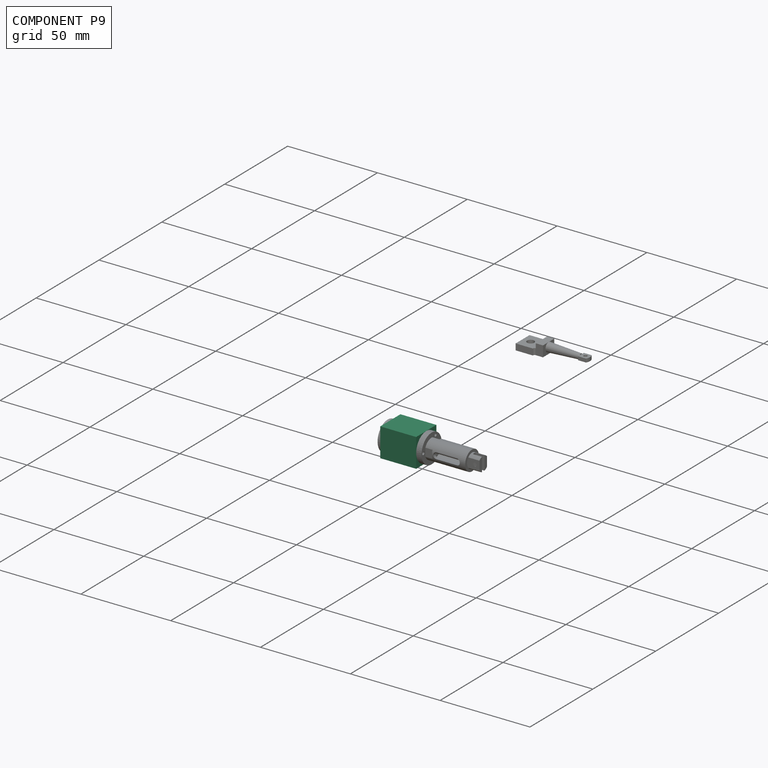
[diagram: component P9 — assembled]
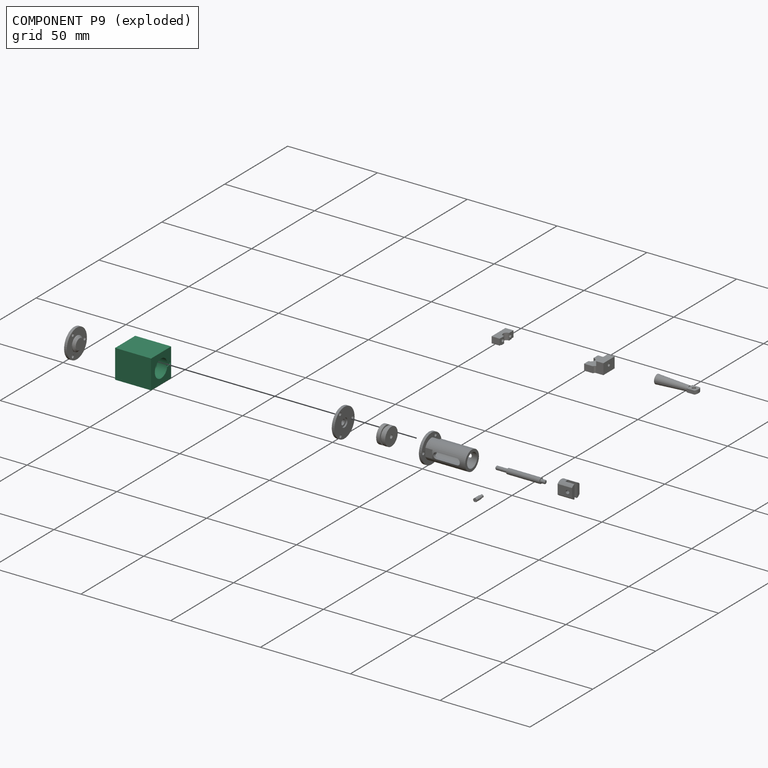
[diagram: component P9 — exploded]
COMPONENT P9 — recipe-attached (CADFS 00828150, mesh-verified: the recipe's output STEP matches this component's geometry to below the mesh-comparison resolution (tessellation chordal tolerance ~0.0453 mm)).
Held by: REVOLUTE mate "Revolute 6" to P4; REVOLUTE mate "Revolute 5" to P1; PARALLEL mate "Parallel 1" to P7.
Construction recipe (FeatureScript — the CAD program that rebuilds this solid; sketch coordinates are in the units given by the * unit suffixes, e.g. mm):

FeatureScript 1511;
import(path : "onshape/std/geometry.fs", version : "1511.0");
import(path : "onshape/std/common.fs", version : "1511.0");
const mm = millimeter;
const VERTEX = EntityType.VERTEX;
const EDGE = EntityType.EDGE;
const FACE = EntityType.FACE;
const BODY = EntityType.BODY;
function v(x, y){return vector(x, y);}
function OD(order){return orderDisambiguation(order);}
function OSD(set){return originalSetDisambiguation(set);}
function TD(topology){return topologyDisambiguation(topology);}
function TDD(query){return trueDependencyDisambiguation(query);}
function sQuery(a, b, c) {return sketchEntityQuery(a, b, c);}

annotation { "Feature Type Name" : "Feature", "Feature Type Description" : "" }
export const myFeature = defineFeature(function(context is Context, id is Id, definition is map)
    precondition{}
    {
        {
            var Q0;
            Q0=qCreatedBy(makeId("Top.planeOp"),FACE);
            var sketch = newSketch(context, id + "F0", { "sketchPlane" : qUnion([Q0])});
            skLineSegment(sketch, "E0.bottom", {"start": v(8, 8) * mm, "end": v(-8, 8) * mm});
            skLineSegment(sketch, "E0.top", {"start": v(8, -8) * mm, "end": v(-8, -8) * mm});
            skLineSegment(sketch, "E0.left", {"start": v(8, 8) * mm, "end": v(8, -8) * mm});
            skLineSegment(sketch, "E0.right", {"start": v(-8, 8) * mm, "end": v(-8, -8) * mm});
            skPoint(sketch, "E0.middle", {"position": v(0, 0) * mm});
            skCircle(sketch, "E1", {"center": v(0, 0) * mm, "radius": 5 * mm});
            skSolve(sketch);
        }
        {
            var Q0;
            Q0 = qSketchRegion(id + "F0", true);
            extrude(context, id + "F1", {"entities" : qUnion([Q0]), "depth" : 20 * mm, "offsetDistance" : 25 * mm});
        }
        {
            var Q0;
            Q0=makeQuery(id+"F1.opExtrude","SWEPT_FACE",FACE,{"disambiguationData":[OSD([sQuery(id+"F0.wireOp",EDGE,"E0.left")])]});
            var sketch = newSketch(context, id + "F2", { "sketchPlane" : qUnion([Q0])});
            skCircle(sketch, "E2", {"center": v(-5, 3) * mm, "radius": 0.85 * mm});
            skCircle(sketch, "E3", {"center": v(5, 3) * mm, "radius": 0.85 * mm});
            skCircle(sketch, "E4", {"center": v(5, 17) * mm, "radius": 0.85 * mm});
            skCircle(sketch, "E5", {"center": v(-5, 17) * mm, "radius": 0.85 * mm});
            skSolve(sketch);
        }
        {
            var Q0;
            Q0=sQuery(id+"F2.wireOp",VERTEX,"E5.center");
            var Q1;
            Q1=sQuery(id+"F2.wireOp",VERTEX,"E4.center");
            var Q2;
            Q2=sQuery(id+"F2.wireOp",VERTEX,"E3.center");
            var Q3;
            Q3=sQuery(id+"F2.wireOp",VERTEX,"E2.center");
            var Q4;
            Q4=makeQuery(id+"F1.opExtrude","SWEPT_BODY",BODY,{"disambiguationData":[OSD([sQuery(id+"F0.wireOp",EDGE,"E0.bottom"),sQuery(id+"F0.wireOp",EDGE,"E0.top"),sQuery(id+"F0.wireOp",EDGE,"E0.left"),sQuery(id+"F0.wireOp",EDGE,"E0.right"),sQuery(id+"F0.wireOp",EDGE,"E1")])]});
            hole(context, id + "F3", {"style" : HoleStyle.SIMPLE, "endStyle" : HoleEndStyle.BLIND, "holeDiameter" : 1.7 * mm, "majorDiameter" : 5 * mm, "holeDepth" : 3 * mm, "isTappedThrough" : true, "tappedDepth" : 7.3 * mm, "tapClearance" : 3, "locations" : qUnion([Q0, Q1, Q2, Q3]), "scope" : qUnion([Q4])});
        }
        {
            var Q0;
            Q0=makeQuery(id+"F1.opExtrude","CAP_FACE",FACE,{"disambiguationData":[OSD([sQuery(id+"F0.wireOp",EDGE,"E0.bottom"),sQuery(id+"F0.wireOp",EDGE,"E0.top"),sQuery(id+"F0.wireOp",EDGE,"E0.left"),sQuery(id+"F0.wireOp",EDGE,"E0.right"),sQuery(id+"F0.wireOp",EDGE,"E1")])],"isStart":true});
            var sketch = newSketch(context, id + "F4", { "sketchPlane" : qUnion([Q0])});
            skLineSegment(sketch, "E6.bottom", {"start": v(6.5, -1) * mm, "end": v(0, -1) * mm});
            skLineSegment(sketch, "E6.top", {"start": v(6.5, 1) * mm, "end": v(0, 1) * mm});
            skLineSegment(sketch, "E6.right", {"start": v(0, -1) * mm, "end": v(0, 1) * mm});
            skPoint(sketch, "E6.middle", {"position": v(3.25, 0) * mm});
            skArc(sketch, "E7", {"start": v(6.5, -1) * mm, "mid": v(7.5, 0) * mm, "end": v(6.5, 1) * mm});
            skSolve(sketch);
        }
        {
            var Q0;
            Q0 = qSketchRegion(id + "F4", true);
            extrude(context, id + "F5", {"entities" : qUnion([Q0]), "operationType" : NewBodyOperationType.REMOVE, "oppositeDirection" : true, "depth" : 0.5 * mm, "offsetDistance" : 25 * mm});
        }
    });
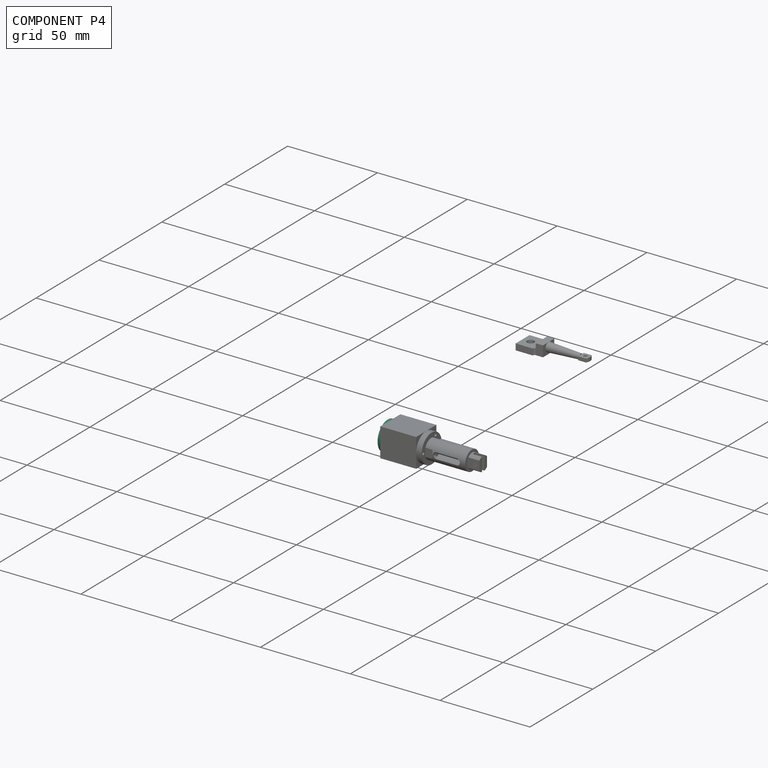
[diagram: component P4 — assembled]
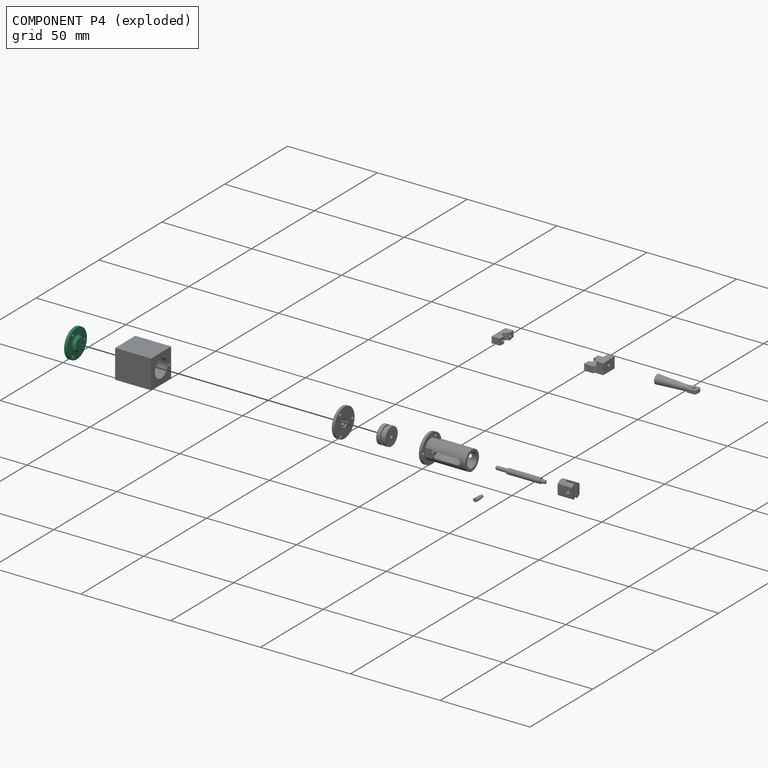
[diagram: component P4 — exploded]
COMPONENT P4 — recipe-attached (CADFS 00828151, mesh-verified: the recipe's output STEP matches this component's geometry to below the mesh-comparison resolution (tessellation chordal tolerance ~0.0344 mm)).
Held by: REVOLUTE mate "Revolute 6" to P9.
Construction recipe (FeatureScript — the CAD program that rebuilds this solid; sketch coordinates are in the units given by the * unit suffixes, e.g. mm):

FeatureScript 1511;
import(path : "onshape/std/geometry.fs", version : "1511.0");
import(path : "onshape/std/common.fs", version : "1511.0");
const mm = millimeter;
const VERTEX = EntityType.VERTEX;
const EDGE = EntityType.EDGE;
const FACE = EntityType.FACE;
const BODY = EntityType.BODY;
function v(x, y){return vector(x, y);}
function OD(order){return orderDisambiguation(order);}
function OSD(set){return originalSetDisambiguation(set);}
function TD(topology){return topologyDisambiguation(topology);}
function TDD(query){return trueDependencyDisambiguation(query);}
function sQuery(a, b, c) {return sketchEntityQuery(a, b, c);}

annotation { "Feature Type Name" : "Feature", "Feature Type Description" : "" }
export const myFeature = defineFeature(function(context is Context, id is Id, definition is map)
    precondition{}
    {
        {
            var Q0;
            Q0=qCreatedBy(makeId("Front.planeOp"),FACE);
            var sketch = newSketch(context, id + "F0", { "sketchPlane" : qUnion([Q0])});
            skLineSegment(sketch, "E0", {"start": v(0, 0) * mm, "end": v(3.8, 0) * mm});
            skLineSegment(sketch, "E1", {"start": v(3.8, 0) * mm, "end": v(3.8, 5) * mm});
            skLineSegment(sketch, "E2", {"start": v(3.8, 5) * mm, "end": v(3, 5) * mm});
            skLineSegment(sketch, "E3", {"start": v(3, 5) * mm, "end": v(3, 8) * mm});
            skLineSegment(sketch, "E4", {"start": v(3, 8) * mm, "end": v(1.5, 8) * mm});
            skLineSegment(sketch, "E5", {"start": v(1.5, 8) * mm, "end": v(1.5, 4) * mm});
            skLineSegment(sketch, "E6", {"start": v(1.5, 4) * mm, "end": v(0, 4) * mm});
            skLineSegment(sketch, "E7", {"start": v(0, 4) * mm, "end": v(0, 0) * mm});
            skSolve(sketch);
        }
        {
            var Q0;
            Q0 = qSketchRegion(id + "F0", true);
            var Q1;
            Q1=sQuery(id+"F0.wireOp",EDGE,"E0");
            revolve(context, id + "F1", {"surfaceOperationType" : NewSurfaceOperationType.NEW, "entities" : qUnion([Q0]), "axis" : qUnion([Q1]), "revolveType" : RevolveType.FULL});
        }
        {
            var Q0;
            Q0=makeQuery(id+"F1.opRevolve","SWEPT_EDGE",EDGE,{"disambiguationData":[OSD([sQuery(id+"F0.wireOp",EDGE,"E6"),sQuery(id+"F0.wireOp",EDGE,"E7")])]});
            chamfer(context, id + "F2", {"entities" : qUnion([Q0]), "width" : 1 * mm, "tangentPropagation" : true});
        }
        {
            var Q0;
            Q0=makeQuery(id+"F1.opRevolve","SWEPT_FACE",FACE,{"disambiguationData":[OSD([sQuery(id+"F0.wireOp",EDGE,"E3")])]});
            var sketch = newSketch(context, id + "F3", { "sketchPlane" : qUnion([Q0])});
            skCircle(sketch, "E8", {"center": v(6.25, 0) * mm, "radius": 0.85 * mm});
            skCircle(sketch, "E9", {"center": v(-3.13, 5.41) * mm, "radius": 0.85 * mm});
            skCircle(sketch, "E10", {"center": v(-3.12, -5.41) * mm, "radius": 0.85 * mm});
            skCircle(sketch, "E11", {"center": v(0, 0) * mm, "radius": 6.25 * mm, "construction": true});
            skLineSegment(sketch, "E12", {"start": v(0, 0) * mm, "end": v(6.25, 0) * mm, "construction": true});
            skLineSegment(sketch, "E13", {"start": v(0, 0) * mm, "end": v(-3.12, -5.41) * mm, "construction": true});
            skLineSegment(sketch, "E14", {"start": v(0, 0) * mm, "end": v(-3.13, 5.41) * mm, "construction": true});
            skSolve(sketch);
        }
        {
            var Q0;
            Q0 = qSketchRegion(id + "F3", true);
            extrude(context, id + "F4", {"entities" : qUnion([Q0]), "operationType" : NewBodyOperationType.REMOVE, "endBound" : BoundingType.THROUGH_ALL, "oppositeDirection" : true, "depth" : 25 * mm, "offsetDistance" : 25 * mm});
        }
        {
            var Q0;
            Q0=makeQuery(id+"F1.opRevolve","SWEPT_FACE",FACE,{"disambiguationData":[OSD([sQuery(id+"F0.wireOp",EDGE,"E1")])]});
            var sketch = newSketch(context, id + "F5", { "sketchPlane" : qUnion([Q0])});
            skCircle(sketch, "E15", {"center": v(-5, 0) * mm, "radius": 1.25 * mm});
            skSolve(sketch);
        }
        {
            var Q0;
            Q0 = qSketchRegion(id + "F5", true);
            var Q1;
            Q1=makeQuery(id+"F1.opRevolve","SWEPT_FACE",FACE,{"disambiguationData":[OSD([sQuery(id+"F0.wireOp",EDGE,"E3")])]});
            extrude(context, id + "F6", {"entities" : qUnion([Q0]), "operationType" : NewBodyOperationType.REMOVE, "endBound" : BoundingType.UP_TO_SURFACE, "oppositeDirection" : true, "depth" : 25 * mm, "endBoundEntityFace" : qUnion([Q1]), "offsetDistance" : 25 * mm});
        }
        {
            var Q0;
            Q0=makeQuery(id+"F1.opRevolve","SWEPT_FACE",FACE,{"disambiguationData":[OSD([sQuery(id+"F0.wireOp",EDGE,"E1")])]});
            var sketch = newSketch(context, id + "F7", { "sketchPlane" : qUnion([Q0])});
            skCircle(sketch, "E16", {"center": v(0, 0) * mm, "radius": 2.25 * mm});
            skSolve(sketch);
        }
        {
            var Q0;
            Q0 = qSketchRegion(id + "F7", true);
            extrude(context, id + "F8", {"entities" : qUnion([Q0]), "operationType" : NewBodyOperationType.REMOVE, "oppositeDirection" : true, "depth" : 2.5 * mm, "offsetDistance" : 25 * mm});
        }
    });
PROVENANCE & LICENSES
Assembly (occurrences, transforms, mates, per-part STEP geometry): AutoMate dataset, Zenodo record 7776208, CC0.
Construction recipes: CADFS (HuggingFace VladPyatov/CADFS, CC-BY-4.0, layered over the ABC dataset), FeatureScript reconstruction programs keyed by ABC model id.
Join: ABC meta listings map ABC model id -> Onshape documentId; within a shared document, parts are matched by geometric signature (bounding-box dims + volume at 0.1% relative tolerance, exact B-rep face/solid counts).
Verification: 8 of this assembly's 11 components carry a recipe attachment, and every attachment is mesh-verified: the CADFS STEP and the AutoMate member STEP were compared as meshes in their shared local frame (symmetric sampled-point-to-mesh distance); worst across the 8 attachments: below the mesh-comparison resolution (tessellation chordal tolerance ~0.0453 mm) on a 30 mm part.
Renders: orthographic iso camera (az 35 / el 25); the floor grid conveys scale (grid pitch printed in each image; no ruler). In the exploded view each component is displaced by its stored offset vector: the offsets alone carry the explosion direction (mate normal/axis signs are not orientation cues and do not encode it), and separation distances are assigned per mate-chain, not proportionally to assembly-order depth.
